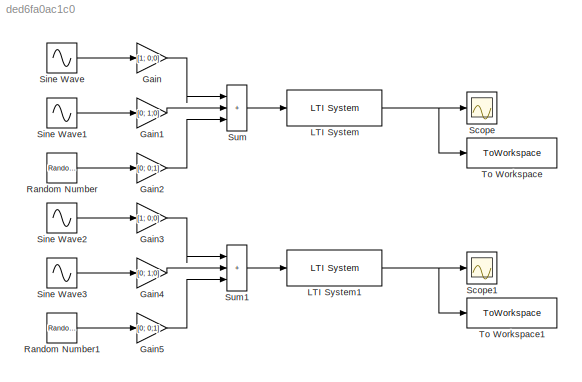
MODEL slx_ded6fa0ac1c0
KIND model
CONFIG AbsTol = auto
CONFIG EnableMultiTasking = off
CONFIG FixedStep = 0.0001
CONFIG MaxStep = auto
CONFIG MinStep = auto
CONFIG RelTol = 1e-3
CONFIG SampleTimeConstraint = Unconstrained
CONFIG SolverName = FixedStepAuto
CONFIG StartTime = 0.0
CONFIG StopTime = 20
BLOCK [Gain] Gain
  Gain = [1; 0;0]
  Multiplication = Matrix(K*u)
BLOCK [Gain] Gain1
  Gain = [0; 1;0]
  Multiplication = Matrix(K*u)
BLOCK [Gain] Gain2
  Gain = [0; 0;1]
  Multiplication = Matrix(K*u)
BLOCK [Gain] Gain3
  Gain = [1; 0;0]
  Multiplication = Matrix(K*u)
BLOCK [Gain] Gain4
  Gain = [0; 1;0]
  Multiplication = Matrix(K*u)
BLOCK [Gain] Gain5
  Gain = [0; 0;1]
  Multiplication = Matrix(K*u)
BLOCK [Reference] LTI System  REF=cstblocks/LTI System
  Ports = [1, 1]
  SourceBlock = cstblocks/LTI System
  SourceProductBaseCode = CT
  SourceType = LTI Block
BLOCK [Reference] LTI System1  REF=cstblocks/LTI System
  Ports = [1, 1]
  SourceBlock = cstblocks/LTI System
  SourceProductBaseCode = CT
  SourceType = LTI Block
BLOCK [RandomNumber] Random Number
  SampleTime = 0.1
  Seed = 1
  Variance = 2
BLOCK [RandomNumber] Random Number1
  SampleTime = 0.1
  Seed = 1
  Variance = 2
BLOCK [Scope] Scope
  Floating = off
  NumInputPorts = 1
  Ports = [1]
  ScopeSpecificationString = Simulink.scopes.TimeScopeBlockCfg('CurrentConfiguration', extmgr.ConfigurationSet(extmgr.Configuration('Core','General UI',true),extmgr.Configuration('Core','Source UI',true),extmgr.Configuration('Sources','WiredSimulink',true),extmgr.Configuration('Visuals','Time Domain',true,'SerializedDisplays',{struct('MinYLimReal','-63.00115','MaxYLimReal','57.5656','YLabelReal','z','MinYLimMag','0.00000','Ma...<+1495ch>
BLOCK [Scope] Scope1
  Floating = off
  NumInputPorts = 1
  Ports = [1]
  ScopeSpecificationString = Simulink.scopes.TimeScopeBlockCfg('CurrentConfiguration', extmgr.ConfigurationSet(extmgr.Configuration('Core','General UI',true),extmgr.Configuration('Core','Source UI',true),extmgr.Configuration('Sources','WiredSimulink',true,'DataLoggingVariableName','ScopeData1'),extmgr.Configuration('Visuals','Time Domain',true,'SerializedDisplays',{struct('MinYLimReal','-63.00115','MaxYLimReal','57.5656','YLa...<+1534ch>
BLOCK [Sin] Sine Wave
  Amplitude = 2
  Phase = pi/4
  Ports = [0, 1]
  SampleTime = 0
BLOCK [Sin] Sine Wave1
  Amplitude = 3
  Phase = pi/2
  Ports = [0, 1]
  SampleTime = 0
BLOCK [Sin] Sine Wave2
  Amplitude = 2
  Frequency = 10
  Phase = pi/4
  Ports = [0, 1]
  SampleTime = 0
BLOCK [Sin] Sine Wave3
  Amplitude = 3
  Frequency = 10
  Phase = pi/2
  Ports = [0, 1]
  SampleTime = 0
BLOCK [Sum] Sum
  IconShape = rectangular
  Inputs = |+++
  Ports = [3, 1]
BLOCK [Sum] Sum1
  IconShape = rectangular
  Inputs = |+++
  Ports = [3, 1]
BLOCK [ToWorkspace] To Workspace
  FixptAsFi = on
  MaxDataPoints = inf
  Ports = [1]
  SampleTime = -1
  SaveFormat = Timeseries
  VariableName = z
BLOCK [ToWorkspace] To Workspace1
  FixptAsFi = on
  MaxDataPoints = inf
  Ports = [1]
  SampleTime = -1
  SaveFormat = Timeseries
  VariableName = z1
LINE Gain1:1 -> Sum:2
LINE Gain2:1 -> Sum:3
LINE Gain3:1 -> Sum1:1
LINE Gain4:1 -> Sum1:2
LINE Gain5:1 -> Sum1:3
LINE Gain:1 -> Sum:1
NET LTI System1:1 -> Scope1:1, To Workspace1:1
NET LTI System:1 -> Scope:1, To Workspace:1
LINE Random Number1:1 -> Gain5:1
LINE Random Number:1 -> Gain2:1
LINE Sine Wave1:1 -> Gain1:1
LINE Sine Wave2:1 -> Gain3:1
LINE Sine Wave3:1 -> Gain4:1
LINE Sine Wave:1 -> Gain:1
LINE Sum1:1 -> LTI System1:1
LINE Sum:1 -> LTI System:1
note: NET lines group one-source signal fan-out (src -> all destinations, sorted); 1:1 wires keep LINE
